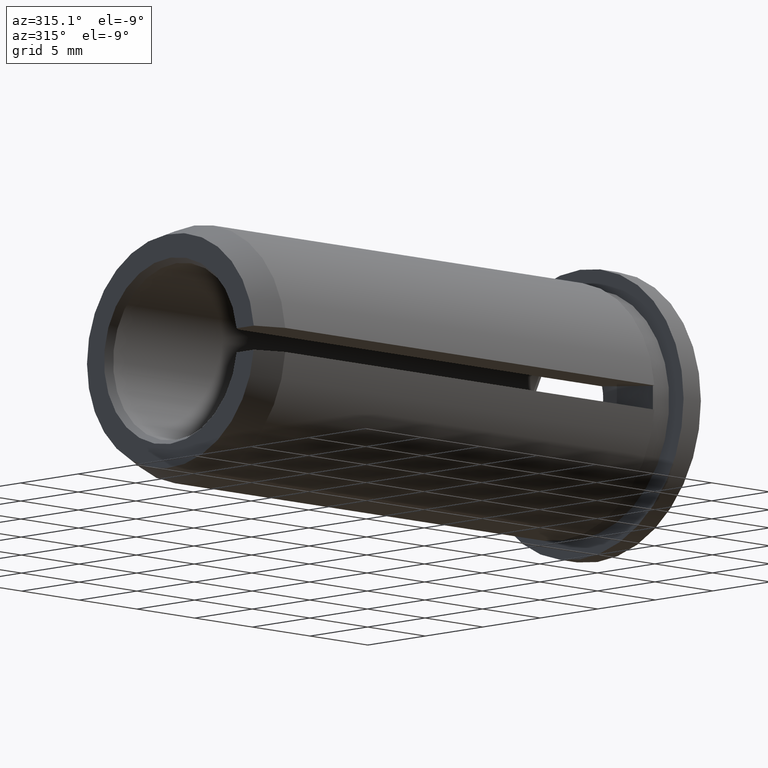
[diagram: clean part render]
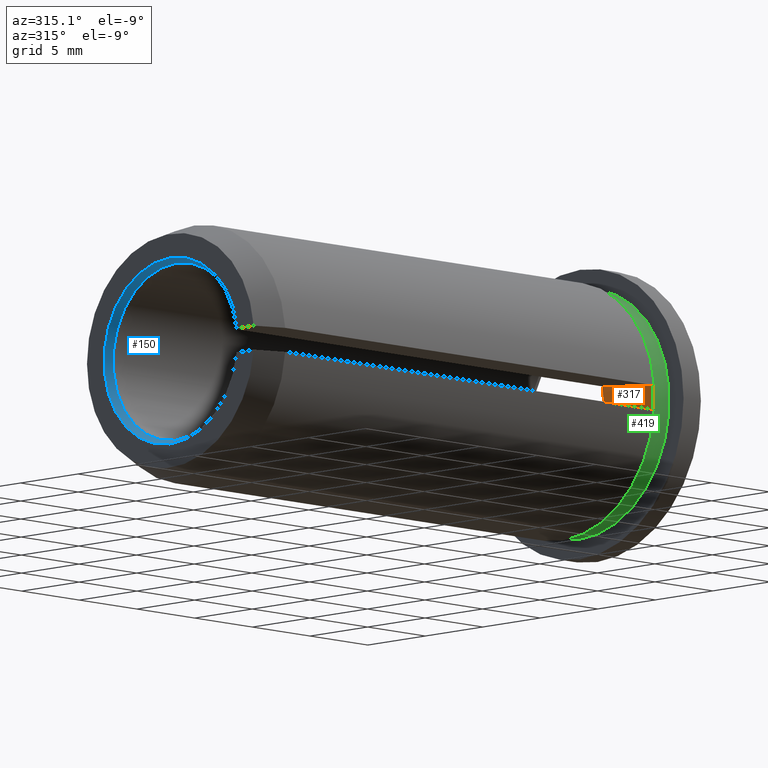
[diagram: same view with three faces highlighted in distinct colors, each labeled with its STEP entity id]
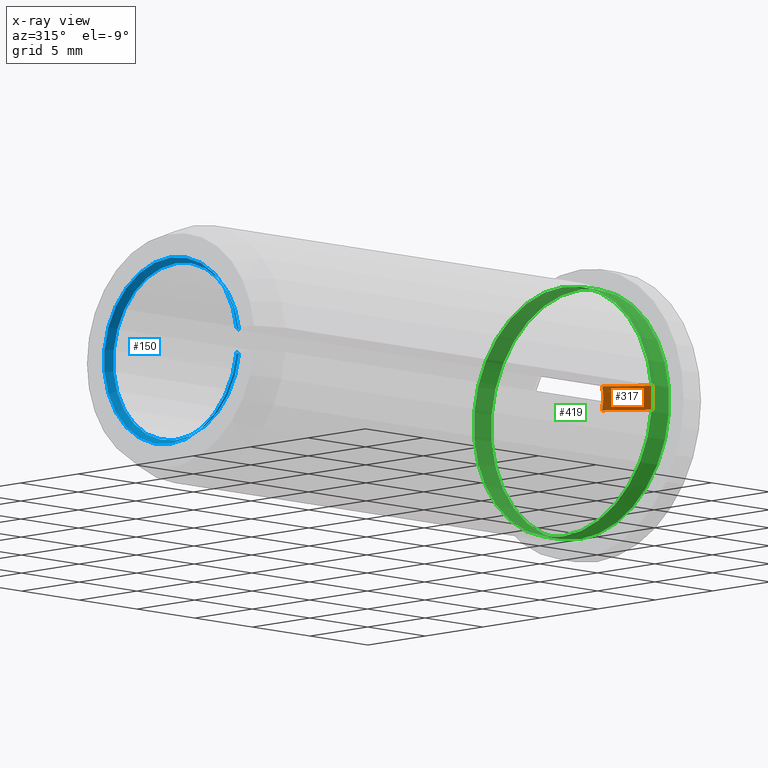
[diagram: x-ray of the same camera — body ghosted, the three highlighted faces saturated]
A machine part, auxiliary view with three faces highlighted in distinct colors.
The next image is the same camera in x-ray (body ghosted, the three faces saturated) — at least one of them is partly hidden behind the body in this view.
Their STEP definitions:

[orange] entity #317 — the highlighted cylindrical surface (partial cylindrical patch) has radius 31.5 mm, axis along (-0, -0, 1).
#5 = CARTESIAN_POINT ( 'NONE',  ( -5.026359045876161800, -5.448623679425841400, -0.7500000000000000000 ) ) ;
#12 = CARTESIAN_POINT ( 'NONE',  ( -3.000000000000002700, -7.836232103263177400, -0.7500000000000000000 ) ) ;
#22 = DIRECTION ( 'NONE',  ( -1.000000000000000000, 0.0000000000000000000, 0.0000000000000000000 ) ) ;
#35 = CARTESIAN_POINT ( 'NONE',  ( -4.961795163846606900, -5.517448399587009600, 0.2500000000000010000 ) ) ;
#37 = EDGE_CURVE ( 'NONE', #159, #406, #178, .T. ) ;
#42 = ORIENTED_EDGE ( 'NONE', *, *, #410, .T. ) ;
#52 = DIRECTION ( 'NONE',  ( -0.0000000000000000000, -0.0000000000000000000, 1.000000000000000000 ) ) ;
#53 = DIRECTION ( 'NONE',  ( 1.000000000000000000, 0.0000000000000000000, 0.0000000000000000000 ) ) ;
#67 = AXIS2_PLACEMENT_3D ( 'NONE', #129, #130, #253 ) ;
#80 = AXIS2_PLACEMENT_3D ( 'NONE', #85, #52, #53 ) ;
#85 = CARTESIAN_POINT ( 'NONE',  ( -27.99999999999999600, -27.00000000000000000, -0.7500000000000000000 ) ) ;
#100 = CARTESIAN_POINT ( 'NONE',  ( -5.026359045876161800, -5.448623679425841400, 0.7500000000000000000 ) ) ;
#129 = CARTESIAN_POINT ( 'NONE',  ( -27.99999999999999600, -27.00000000000000000, 0.7500000000000000000 ) ) ;
#130 = DIRECTION ( 'NONE',  ( 0.0000000000000000000, 0.0000000000000000000, 1.000000000000000000 ) ) ;
#159 = VERTEX_POINT ( 'NONE', #381 ) ;
#171 = VERTEX_POINT ( 'NONE', #408 ) ;
#177 = ORIENTED_EDGE ( 'NONE', *, *, #240, .F. ) ;
#178 = B_SPLINE_CURVE_WITH_KNOTS ( 'NONE', 3,
 ( #5, #302, #35, #100 ),
 .UNSPECIFIED., .F., .F.,
 ( 4, 4 ),
 ( 0.0000000000000000000, 0.001500000000000000000 ),
 .UNSPECIFIED. ) ;
#200 = CIRCLE ( 'NONE', #389, 31.50000000000000700 ) ;
#223 = CIRCLE ( 'NONE', #67, 31.50000000000000700 ) ;
#240 = EDGE_CURVE ( 'NONE', #171, #292, #268, .T. ) ;
#241 = DIRECTION ( 'NONE',  ( 0.0000000000000000000, 0.0000000000000000000, -1.000000000000000000 ) ) ;
#248 = CYLINDRICAL_SURFACE ( 'NONE', #80, 31.50000000000000700 ) ;
#253 = DIRECTION ( 'NONE',  ( -1.000000000000000000, 0.0000000000000000000, 0.0000000000000000000 ) ) ;
#268 = LINE ( 'NONE', #12, #326 ) ;
#277 = ORIENTED_EDGE ( 'NONE', *, *, #37, .F. ) ;
#292 = VERTEX_POINT ( 'NONE', #387 ) ;
#297 = EDGE_CURVE ( 'NONE', #292, #159, #200, .T. ) ;
#302 = CARTESIAN_POINT ( 'NONE',  ( -4.961795163846599800, -5.517448399587010500, -0.2499999999999996700 ) ) ;
#317 = ADVANCED_FACE ( 'NONE', ( #426 ), #248, .F. ) ;
#326 = VECTOR ( 'NONE', #241, 1000.000000000000000 ) ;
#349 = DIRECTION ( 'NONE',  ( 0.0000000000000000000, 0.0000000000000000000, 1.000000000000000000 ) ) ;
#356 = CARTESIAN_POINT ( 'NONE',  ( -5.026359045876161800, -5.448623679425841400, 0.7500000000000000000 ) ) ;
#368 = EDGE_LOOP ( 'NONE', ( #393, #177, #42, #277 ) ) ;
#381 = CARTESIAN_POINT ( 'NONE',  ( -5.026359045876161800, -5.448623679425841400, -0.7500000000000000000 ) ) ;
#382 = CARTESIAN_POINT ( 'NONE',  ( -27.99999999999999600, -27.00000000000000000, -0.7500000000000000000 ) ) ;
#387 = CARTESIAN_POINT ( 'NONE',  ( -3.000000000000002700, -7.836232103263177400, -0.7500000000000000000 ) ) ;
#389 = AXIS2_PLACEMENT_3D ( 'NONE', #382, #349, #22 ) ;
#393 = ORIENTED_EDGE ( 'NONE', *, *, #297, .F. ) ;
#406 = VERTEX_POINT ( 'NONE', #356 ) ;
#408 = CARTESIAN_POINT ( 'NONE',  ( -3.000000000000002700, -7.836232103263177400, 0.7500000000000000000 ) ) ;
#410 = EDGE_CURVE ( 'NONE', #171, #406, #223, .T. ) ;
#426 = FACE_OUTER_BOUND ( 'NONE', #368, .T. ) ;

[blue] entity #150 — the highlighted conical surface has half-angle 30 deg.
#1 = FACE_OUTER_BOUND ( 'NONE', #181, .T. ) ;
#4 = ORIENTED_EDGE ( 'NONE', *, *, #369, .F. ) ;
#24 = CARTESIAN_POINT ( 'NONE',  ( -36.50000000000000000, -5.448623679425841400, -0.7500000000000000000 ) ) ;
#34 = ORIENTED_EDGE ( 'NONE', *, *, #170, .F. ) ;
#36 = CARTESIAN_POINT ( 'NONE',  ( -37.00000000000000000, -5.739883257861286800, 0.7500000000000000000 ) ) ;
#44 = AXIS2_PLACEMENT_3D ( 'NONE', #254, #161, #221 ) ;
#46 = CARTESIAN_POINT ( 'NONE',  ( -36.50000000000000000, -5.448623679425841400, -0.7500000000000000000 ) ) ;
#49 = CIRCLE ( 'NONE', #44, 5.788675134594814900 ) ;
#75 = CARTESIAN_POINT ( 'NONE',  ( -36.83331444535005500, -5.642829254337529600, 0.7500000000000000000 ) ) ;
#101 = VERTEX_POINT ( 'NONE', #36 ) ;
#106 = CARTESIAN_POINT ( 'NONE',  ( -37.00000000000000000, -5.739883257861286800, -0.7500000000000000000 ) ) ;
#107 = CIRCLE ( 'NONE', #350, 5.500000000000000000 ) ;
#111 = DIRECTION ( 'NONE',  ( -1.000000000000000000, -0.0000000000000000000, -0.0000000000000000000 ) ) ;
#122 = DIRECTION ( 'NONE',  ( 0.0000000000000000000, 0.0000000000000000000, 1.000000000000000000 ) ) ;
#135 = EDGE_CURVE ( 'NONE', #201, #394, #375, .T. ) ;
#148 = VERTEX_POINT ( 'NONE', #151 ) ;
#150 = ADVANCED_FACE ( 'NONE', ( #1 ), #162, .F. ) ;
#151 = CARTESIAN_POINT ( 'NONE',  ( -36.50000000000000000, -5.448623679425841400, 0.7500000000000000000 ) ) ;
#161 = DIRECTION ( 'NONE',  ( -1.000000000000000000, -0.0000000000000000000, -0.0000000000000000000 ) ) ;
#162 = CONICAL_SURFACE ( 'NONE', #427, 5.788675134594814900, 0.5235987755983014800 ) ;
#170 = EDGE_CURVE ( 'NONE', #101, #148, #269, .T. ) ;
#180 = CARTESIAN_POINT ( 'NONE',  ( -36.50000000000000000, -5.448623679425841400, 0.7500000000000000000 ) ) ;
#181 = EDGE_LOOP ( 'NONE', ( #243, #402, #4, #34 ) ) ;
#183 = CARTESIAN_POINT ( 'NONE',  ( -37.00000000000000000, -5.739883257861286800, -0.7500000000000000000 ) ) ;
#201 = VERTEX_POINT ( 'NONE', #183 ) ;
#221 = DIRECTION ( 'NONE',  ( 0.0000000000000000000, 0.0000000000000000000, 1.000000000000000000 ) ) ;
#243 = ORIENTED_EDGE ( 'NONE', *, *, #399, .T. ) ;
#254 = CARTESIAN_POINT ( 'NONE',  ( -37.00000000000000000, 0.0000000000000000000, 0.0000000000000000000 ) ) ;
#269 = B_SPLINE_CURVE_WITH_KNOTS ( 'NONE', 3,
 ( #405, #75, #345, #180 ),
 .UNSPECIFIED., .F., .F.,
 ( 4, 4 ),
 ( 0.006318320823388439600, 0.006896967145803828600 ),
 .UNSPECIFIED. ) ;
#316 = DIRECTION ( 'NONE',  ( -1.000000000000000000, -0.0000000000000000000, -0.0000000000000000000 ) ) ;
#339 = CARTESIAN_POINT ( 'NONE',  ( -36.83331444535005500, -5.642829254337529600, -0.7500000000000000000 ) ) ;
#342 = DIRECTION ( 'NONE',  ( 0.0000000000000000000, 0.0000000000000000000, 1.000000000000000000 ) ) ;
#345 = CARTESIAN_POINT ( 'NONE',  ( -36.66664677364383400, -5.545744458738215400, 0.7500000000000000000 ) ) ;
#348 = CARTESIAN_POINT ( 'NONE',  ( -37.00000000000000000, 0.0000000000000000000, 0.0000000000000000000 ) ) ;
#350 = AXIS2_PLACEMENT_3D ( 'NONE', #384, #316, #122 ) ;
#369 = EDGE_CURVE ( 'NONE', #148, #394, #107, .T. ) ;
#372 = CARTESIAN_POINT ( 'NONE',  ( -36.66664677364383400, -5.545744458738215400, -0.7500000000000000000 ) ) ;
#375 = B_SPLINE_CURVE_WITH_KNOTS ( 'NONE', 3,
 ( #106, #339, #372, #46 ),
 .UNSPECIFIED., .F., .F.,
 ( 4, 4 ),
 ( 0.006318320823388439600, 0.006896967145803828600 ),
 .UNSPECIFIED. ) ;
#384 = CARTESIAN_POINT ( 'NONE',  ( -36.50000000000000000, 0.0000000000000000000, 0.0000000000000000000 ) ) ;
#394 = VERTEX_POINT ( 'NONE', #24 ) ;
#399 = EDGE_CURVE ( 'NONE', #101, #201, #49, .T. ) ;
#402 = ORIENTED_EDGE ( 'NONE', *, *, #135, .T. ) ;
#405 = CARTESIAN_POINT ( 'NONE',  ( -37.00000000000000000, -5.739883257861286800, 0.7500000000000000000 ) ) ;
#427 = AXIS2_PLACEMENT_3D ( 'NONE', #348, #111, #342 ) ;

[green] entity #419 — the highlighted cylindrical surface (bore or boss wall) has radius 7.75 mm, axis along (-1, -0, -0).
#43 = DIRECTION ( 'NONE',  ( 0.0000000000000000000, 0.0000000000000000000, 1.000000000000000000 ) ) ;
#50 = EDGE_LOOP ( 'NONE', ( #60 ) ) ;
#59 = AXIS2_PLACEMENT_3D ( 'NONE', #330, #360, #86 ) ;
#60 = ORIENTED_EDGE ( 'NONE', *, *, #169, .T. ) ;
#62 = CARTESIAN_POINT ( 'NONE',  ( -1.500000000000001300, 0.0000000000000000000, 7.750000000000000000 ) ) ;
#64 = EDGE_CURVE ( 'NONE', #319, #319, #136, .T. ) ;
#74 = CIRCLE ( 'NONE', #97, 7.750000000000000000 ) ;
#86 = DIRECTION ( 'NONE',  ( 0.0000000000000000000, 0.0000000000000000000, 1.000000000000000000 ) ) ;
#96 = FACE_OUTER_BOUND ( 'NONE', #50, .T. ) ;
#97 = AXIS2_PLACEMENT_3D ( 'NONE', #310, #145, #43 ) ;
#133 = ORIENTED_EDGE ( 'NONE', *, *, #64, .F. ) ;
#136 = CIRCLE ( 'NONE', #235, 7.750000000000000000 ) ;
#145 = DIRECTION ( 'NONE',  ( -1.000000000000000000, -0.0000000000000000000, -0.0000000000000000000 ) ) ;
#169 = EDGE_CURVE ( 'NONE', #197, #197, #74, .T. ) ;
#175 = DIRECTION ( 'NONE',  ( -1.000000000000000000, -0.0000000000000000000, -0.0000000000000000000 ) ) ;
#197 = VERTEX_POINT ( 'NONE', #62 ) ;
#202 = EDGE_LOOP ( 'NONE', ( #133 ) ) ;
#235 = AXIS2_PLACEMENT_3D ( 'NONE', #403, #175, #265 ) ;
#257 = CARTESIAN_POINT ( 'NONE',  ( -3.000000000000002700, 0.0000000000000000000, 7.750000000000000000 ) ) ;
#265 = DIRECTION ( 'NONE',  ( 0.0000000000000000000, 0.0000000000000000000, 1.000000000000000000 ) ) ;
#267 = CYLINDRICAL_SURFACE ( 'NONE', #59, 7.750000000000000000 ) ;
#310 = CARTESIAN_POINT ( 'NONE',  ( -1.500000000000001300, 0.0000000000000000000, 0.0000000000000000000 ) ) ;
#319 = VERTEX_POINT ( 'NONE', #257 ) ;
#330 = CARTESIAN_POINT ( 'NONE',  ( -38.58775536857143600, 0.0000000000000000000, 0.0000000000000000000 ) ) ;
#360 = DIRECTION ( 'NONE',  ( -1.000000000000000000, -0.0000000000000000000, -0.0000000000000000000 ) ) ;
#403 = CARTESIAN_POINT ( 'NONE',  ( -3.000000000000002700, 0.0000000000000000000, 0.0000000000000000000 ) ) ;
#419 = ADVANCED_FACE ( 'NONE', ( #425, #96 ), #267, .T. ) ;
#425 = FACE_OUTER_BOUND ( 'NONE', #202, .T. ) ;